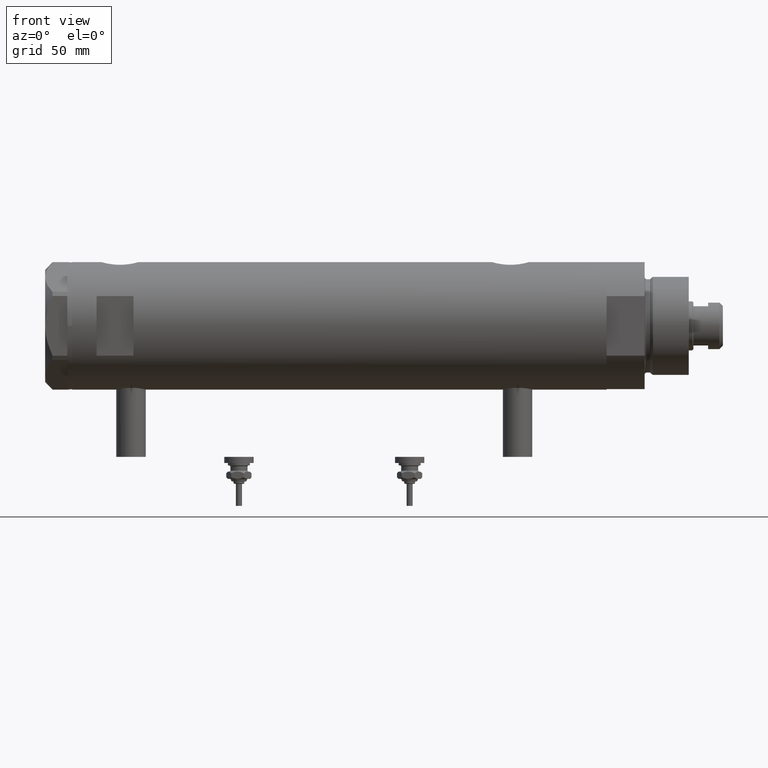
[diagram: clean part render]
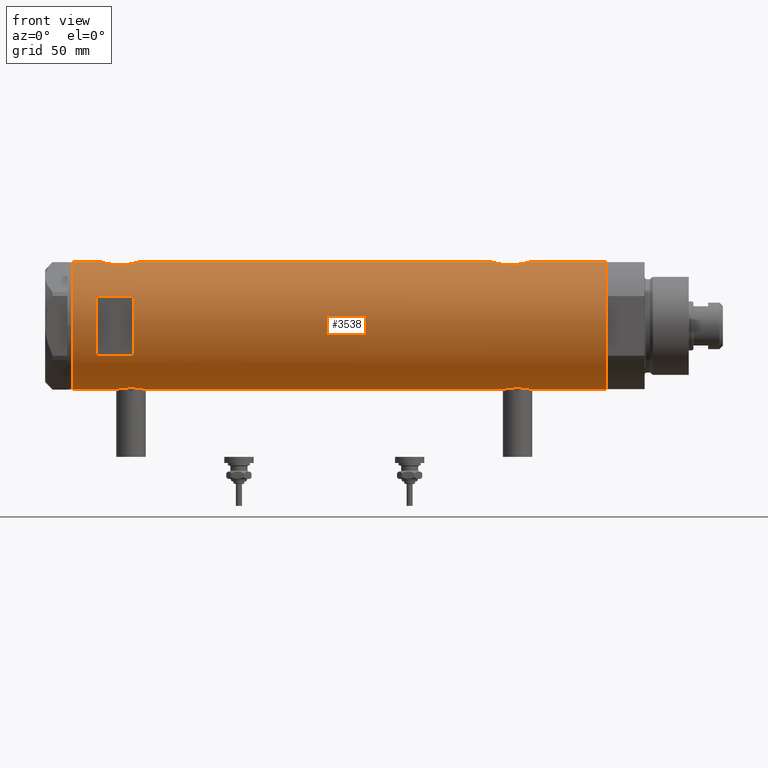
[diagram: same view with one face highlighted and labeled with its STEP entity id]
A machine part, front view. The second image highlights one B-rep face of the part: STEP entity #3538.
In plain terms, the highlighted cylindrical surface (partial cylindrical patch) has radius 26 mm, axis along (-1, -0, 0).
Its self-contained STEP definition (entity closure, byte-faithful):
#2 = CARTESIAN_POINT ( 'NONE',  ( -25.57167894663063024, -4.701762988462085069, 89.07280450192419607 ) ) ;
#37 = CARTESIAN_POINT ( 'NONE',  ( -25.25025691038242215, -6.198787452305312584, 84.12558834604206481 ) ) ;
#52 = CARTESIAN_POINT ( 'NONE',  ( 24.89854802586675220, -7.487520416261751244, -69.25184316422095776 ) ) ;
#55 = CARTESIAN_POINT ( 'NONE',  ( -25.78943824387523520, -3.306687742228915372, -77.95754138783466658 ) ) ;
#69 = CARTESIAN_POINT ( 'NONE',  ( -25.42977453177915592, -5.420307583276858132, 81.81187728206637644 ) ) ;
#84 = CARTESIAN_POINT ( 'NONE',  ( 25.59500516383204882, -4.575229401795805728, -75.69787755065419788 ) ) ;
#87 = CARTESIAN_POINT ( 'NONE',  ( -25.24022290516699130, -6.239518219915429320, -73.06597215938428747 ) ) ;
#127 = CARTESIAN_POINT ( 'NONE',  ( 24.89475831528844907, -7.500067228253142204, 88.95662571746466085 ) ) ;
#152 = CARTESIAN_POINT ( 'NONE',  ( 26.00000000000000355, 3.155021778966484351E-16, -77.25000000000001421 ) ) ;
#155 = CARTESIAN_POINT ( 'NONE',  ( -25.28680988956730147, -6.048472998962280300, -74.27627694188244334 ) ) ;
#190 = CARTESIAN_POINT ( 'NONE',  ( 25.52567976009756023, -4.956266804246118873, 95.10019927459099165 ) ) ;
#385 = VECTOR ( 'NONE', #3114, 1000.000000000000000 ) ;
#395 = ORIENTED_EDGE ( 'NONE', *, *, #2125, .F. ) ;
#408 = CARTESIAN_POINT ( 'NONE',  ( 26.00000000000000355, 1.142179864233347086E-15, 81.94999999999998863 ) ) ;
#473 = CARTESIAN_POINT ( 'NONE',  ( 24.90947356773249055, -7.451722770779349858, -70.73190841828153452 ) ) ;
#487 = CARTESIAN_POINT ( 'NONE',  ( -25.92425332714051933, -2.018894156999441858, 79.02103879324673130 ) ) ;
#505 = VERTEX_POINT ( 'NONE', #3537 ) ;
#516 = CARTESIAN_POINT ( 'NONE',  ( -25.49846181844014481, -5.083495422175113632, 88.59177503382598218 ) ) ;
#522 = LINE ( 'NONE', #4928, #3123 ) ;
#537 = CARTESIAN_POINT ( 'NONE',  ( -25.42977453177915592, -5.420307583276858132, -75.78812271793360367 ) ) ;
#540 = CARTESIAN_POINT ( 'NONE',  ( -26.00000000000000355, 3.184081677783118585E-15, -108.9500000000000028 ) ) ;
#628 = CARTESIAN_POINT ( 'NONE',  ( -25.67063510297210271, -4.128418051804843003, -67.95317424728736455 ) ) ;
#636 = CARTESIAN_POINT ( 'NONE',  ( 25.03461301890608581, -7.019803056070516689, 86.79816816893104203 ) ) ;
#668 = CARTESIAN_POINT ( 'NONE',  ( 25.17393786935995692, -6.507882790539431639, 85.68962666655968974 ) ) ;
#699 = CARTESIAN_POINT ( 'NONE',  ( 25.38109653984943392, -5.641393955635675361, 94.39819092448752258 ) ) ;
#713 = DIRECTION ( 'NONE',  ( 0.000000000000000000, 0.000000000000000000, 1.000000000000000000 ) ) ;
#758 = VERTEX_POINT ( 'NONE', #1038 ) ;
#796 = CARTESIAN_POINT ( 'NONE',  ( 0.000000000000000000, 0.000000000000000000, 98.95000000000001705 ) ) ;
#884 = CARTESIAN_POINT ( 'NONE',  ( 26.00000000000000000, -0.4982617809740604309, 81.94999999999998863 ) ) ;
#903 = CARTESIAN_POINT ( 'NONE',  ( -25.59645788645699227, -4.565358797148518555, 89.22330529203479443 ) ) ;
#936 = CARTESIAN_POINT ( 'NONE',  ( -25.92364458890660472, -2.026637113504541343, 90.87630990691475574 ) ) ;
#958 = CARTESIAN_POINT ( 'NONE',  ( 25.88994451797512397, -2.432613607265610156, -76.86140968713208110 ) ) ;
#986 = CARTESIAN_POINT ( 'NONE',  ( 25.89059789403177092, -2.425642437452270705, -62.63622552757698259 ) ) ;
#1005 = DIRECTION ( 'NONE',  ( 0.000000000000000000, 0.000000000000000000, 1.000000000000000000 ) ) ;
#1029 = CARTESIAN_POINT ( 'NONE',  ( -25.72076778631230098, -3.815670258243490043, 79.98312189468119016 ) ) ;
#1038 = CARTESIAN_POINT ( 'NONE',  ( 26.00000000000000355, -3.975028449552882818E-20, -62.24999999999999289 ) ) ;
#1046 = CARTESIAN_POINT ( 'NONE',  ( 25.38109653984943748, -5.641393955635675361, -64.80180907551250868 ) ) ;
#1055 = VERTEX_POINT ( 'NONE', #5252 ) ;
#1081 = CARTESIAN_POINT ( 'NONE',  ( -25.42883439573799720, -5.424786127492319920, -69.51918542739090867 ) ) ;
#1089 = EDGE_CURVE ( 'NONE', #2269, #5100, #2810, .T. ) ;
#1115 = CARTESIAN_POINT ( 'NONE',  ( -25.57167894663063024, -4.701762988462084181, -68.52719549807581245 ) ) ;
#1119 = CARTESIAN_POINT ( 'NONE',  ( 24.92415241886515531, -7.401968919186696638, 90.68323537444815940 ) ) ;
#1154 = CARTESIAN_POINT ( 'NONE',  ( 25.11243836838846377, -6.738202653785839935, 86.12043350844844269 ) ) ;
#1160 = CARTESIAN_POINT ( 'NONE',  ( -25.99999999999999289, -0.4144764235405741237, 91.19999999999997442 ) ) ;
#1162 = VERTEX_POINT ( 'NONE', #540 ) ;
#1182 = LINE ( 'NONE', #5520, #3689 ) ;
#1184 = CARTESIAN_POINT ( 'NONE',  ( 25.98599366666249466, -0.9828433289544136198, 96.90188401723477796 ) ) ;
#1195 = CARTESIAN_POINT ( 'NONE',  ( 26.00000000000000355, 3.155021778966484351E-16, -77.25000000000001421 ) ) ;
#1237 = ORIENTED_EDGE ( 'NONE', *, *, #2875, .F. ) ;
#1260 = FACE_OUTER_BOUND ( 'NONE', #2727, .T. ) ;
#1279 = EDGE_CURVE ( 'NONE', #1162, #1371, #1182, .T. ) ;
#1289 = CYLINDRICAL_SURFACE ( 'NONE', #1495, 26.00000000000000355 ) ;
#1303 = CARTESIAN_POINT ( 'NONE',  ( 25.72912156655464955, -3.765948295762494791, 82.94557024600776174 ) ) ;
#1312 = CARTESIAN_POINT ( 'NONE',  ( 12.12435565298214080, -23.00000000000000355, 83.95000000000001705 ) ) ;
#1341 = CARTESIAN_POINT ( 'NONE',  ( -12.12435565298214080, -23.00000000000000355, 83.95000000000001705 ) ) ;
#1371 = VERTEX_POINT ( 'NONE', #5077 ) ;
#1383 = CARTESIAN_POINT ( 'NONE',  ( -25.78943824387523520, -3.306687742228914484, 79.64245861216535616 ) ) ;
#1397 = DIRECTION ( 'NONE',  ( -0.000000000000000000, -0.000000000000000000, -1.000000000000000000 ) ) ;
#1400 = CARTESIAN_POINT ( 'NONE',  ( 25.93098857934040780, -1.953835360821273515, 82.19226335297440755 ) ) ;
#1413 = CARTESIAN_POINT ( 'NONE',  ( -25.81160981652327635, -3.129523010631801494, 79.53607026277927616 ) ) ;
#1426 = CARTESIAN_POINT ( 'NONE',  ( 26.00000000000000000, -0.4910237949823181847, -62.24999999999997868 ) ) ;
#1475 = CARTESIAN_POINT ( 'NONE',  ( -26.00000000000001066, -0.4086738135806035066, 78.70000000000000284 ) ) ;
#1481 = CARTESIAN_POINT ( 'NONE',  ( -26.00000000000000355, 3.184081677783118585E-15, -108.9500000000000028 ) ) ;
#1489 = CARTESIAN_POINT ( 'NONE',  ( 25.72873412774686130, -3.768477344985557753, -63.24712539855536875 ) ) ;
#1495 = AXIS2_PLACEMENT_3D ( 'NONE', #6213, #713, #1819 ) ;
#1522 = CARTESIAN_POINT ( 'NONE',  ( -26.00000000000000355, 3.184077527313362130E-15, 78.69999999999998863 ) ) ;
#1540 = ORIENTED_EDGE ( 'NONE', *, *, #2091, .F. ) ;
#1545 = AXIS2_PLACEMENT_3D ( 'NONE', #5203, #1713, #4629 ) ;
#1552 = CARTESIAN_POINT ( 'NONE',  ( 25.98569226047905900, -0.9886551788957241849, -77.20082376600181817 ) ) ;
#1555 = CARTESIAN_POINT ( 'NONE',  ( -25.23758491649665459, -6.250144606721702800, -72.23988300428190712 ) ) ;
#1584 = CARTESIAN_POINT ( 'NONE',  ( -25.72076778631230098, -3.815670258243491819, -77.61687810531877574 ) ) ;
#1588 = CARTESIAN_POINT ( 'NONE',  ( 24.96970063328116751, -7.247045583599700080, 87.50280785145197626 ) ) ;
#1617 = CARTESIAN_POINT ( 'NONE',  ( 25.59665538672497576, -4.580438224580683837, 95.40889127712392792 ) ) ;
#1664 = EDGE_CURVE ( 'NONE', #4670, #2429, #4808, .T. ) ;
#1680 = DIRECTION ( 'NONE',  ( 0.000000000000000000, 0.000000000000000000, 1.000000000000000000 ) ) ;
#1713 = DIRECTION ( 'NONE',  ( 0.000000000000000000, 0.000000000000000000, 1.000000000000000000 ) ) ;
#1767 = CARTESIAN_POINT ( 'NONE',  ( -25.85385060263651269, -2.778671585188182025, -67.03685548695763430 ) ) ;
#1772 = CARTESIAN_POINT ( 'NONE',  ( 25.52449676677458967, -4.953491517965892932, 83.81325508665925383 ) ) ;
#1792 = ORIENTED_EDGE ( 'NONE', *, *, #2479, .T. ) ;
#1797 = AXIS2_PLACEMENT_3D ( 'NONE', #796, #5683, #2376 ) ;
#1809 = DIRECTION ( 'NONE',  ( 1.000000000000000000, 0.000000000000000000, 0.000000000000000000 ) ) ;
#1819 = DIRECTION ( 'NONE',  ( 1.000000000000000000, 0.000000000000000000, 0.000000000000000000 ) ) ;
#1862 = ORIENTED_EDGE ( 'NONE', *, *, #1089, .T. ) ;
#1875 = VERTEX_POINT ( 'NONE', #5482 ) ;
#1882 = CARTESIAN_POINT ( 'NONE',  ( -25.95206678899177888, -1.628763264760248353, 90.99800813330213600 ) ) ;
#1886 = DIRECTION ( 'NONE',  ( 0.000000000000000000, 0.000000000000000000, 1.000000000000000000 ) ) ;
#1911 = CARTESIAN_POINT ( 'NONE',  ( -25.85288666140180069, -2.767917424206677524, 79.34257790010329359 ) ) ;
#1926 = CARTESIAN_POINT ( 'NONE',  ( 24.92415241886515176, -7.401968919186693086, -68.51676462555187186 ) ) ;
#1944 = CARTESIAN_POINT ( 'NONE',  ( -26.00000000000000355, 1.227111019500118713E-15, -66.40000000000000568 ) ) ;
#1959 = CARTESIAN_POINT ( 'NONE',  ( 25.93085545515513246, -1.956676574435514349, -62.49272963169730133 ) ) ;
#1975 = CARTESIAN_POINT ( 'NONE',  ( -25.64593536028936427, -4.278686337618962554, 89.51031602960877365 ) ) ;
#1986 = CARTESIAN_POINT ( 'NONE',  ( -12.12435565298214080, -23.00000000000000355, -108.9500000000000028 ) ) ;
#1988 = CARTESIAN_POINT ( 'NONE',  ( 24.89478872726945013, -7.499966281647711064, -69.50178149365218871 ) ) ;
#1992 = CARTESIAN_POINT ( 'NONE',  ( -25.25769689814629970, -6.168504065326070318, -73.67646635296743796 ) ) ;
#2023 = CARTESIAN_POINT ( 'NONE',  ( 25.62983961939740141, -4.376509667782460866, -75.84558499042961444 ) ) ;
#2066 = CARTESIAN_POINT ( 'NONE',  ( 24.90947356773249055, -7.451722770779351634, 88.46809158171845411 ) ) ;
#2091 = EDGE_CURVE ( 'NONE', #3632, #4168, #2843, .T. ) ;
#2125 = EDGE_CURVE ( 'NONE', #505, #1875, #2395, .T. ) ;
#2189 = CARTESIAN_POINT ( 'NONE',  ( -25.99009752186833566, -0.8230863847107360298, -66.44082928593320503 ) ) ;
#2212 = LINE ( 'NONE', #4169, #4034 ) ;
#2244 = CARTESIAN_POINT ( 'NONE',  ( -25.95206678899177533, -1.628763264760248353, -66.60199186669787252 ) ) ;
#2269 = VERTEX_POINT ( 'NONE', #5051 ) ;
#2288 = CARTESIAN_POINT ( 'NONE',  ( 0.000000000000000000, 0.000000000000000000, -108.9500000000000028 ) ) ;
#2339 = CARTESIAN_POINT ( 'NONE',  ( 25.88994451797511687, -2.432613607265607936, 82.33859031286796437 ) ) ;
#2346 = ORIENTED_EDGE ( 'NONE', *, *, #3978, .F. ) ;
#2357 = CARTESIAN_POINT ( 'NONE',  ( -25.42883439573799720, -5.424786127492320809, 88.08081457260908564 ) ) ;
#2376 = DIRECTION ( 'NONE',  ( 1.000000000000000000, 0.000000000000000000, 0.000000000000000000 ) ) ;
#2388 = CARTESIAN_POINT ( 'NONE',  ( -25.28680988956730147, -6.048472998962280300, 83.32372305811755098 ) ) ;
#2395 = LINE ( 'NONE', #1481, #5842 ) ;
#2421 = CARTESIAN_POINT ( 'NONE',  ( -25.23758491649666524, -6.250144606721703688, 85.36011699571807299 ) ) ;
#2429 = VERTEX_POINT ( 'NONE', #1341 ) ;
#2461 = VECTOR ( 'NONE', #1397, 1000.000000000000000 ) ;
#2479 = EDGE_CURVE ( 'NONE', #1162, #2269, #3297, .T. ) ;
#2486 = ORIENTED_EDGE ( 'NONE', *, *, #2707, .F. ) ;
#2501 = CARTESIAN_POINT ( 'NONE',  ( -26.00000000000000355, 3.184077527325983904E-15, -78.90000000000000568 ) ) ;
#2538 = CARTESIAN_POINT ( 'NONE',  ( 25.41756773306325456, -5.475260495868988109, 94.58140873656952863 ) ) ;
#2569 = CARTESIAN_POINT ( 'NONE',  ( -25.28632996747171546, -6.050474653715410156, -71.03088129158460617 ) ) ;
#2598 = CARTESIAN_POINT ( 'NONE',  ( 26.00000000000001066, -0.4982617809740571002, -77.25000000000004263 ) ) ;
#2606 = CARTESIAN_POINT ( 'NONE',  ( 25.30930190055639528, -5.959775463244130655, 84.87025956521969761 ) ) ;
#2635 = CARTESIAN_POINT ( 'NONE',  ( 25.31004928890825667, -5.952041021437470825, 94.01980599883506784 ) ) ;
#2661 = CIRCLE ( 'NONE', #1545, 26.00000000000000355 ) ;
#2704 = CARTESIAN_POINT ( 'NONE',  ( 12.12435565298214080, -23.00000000000000355, 98.95000000000001705 ) ) ;
#2707 = EDGE_CURVE ( 'NONE', #3206, #1055, #4043, .T. ) ;
#2727 = EDGE_LOOP ( 'NONE', ( #3043, #1792, #1862, #1237, #3958, #2486, #3308, #4737, #395, #2838, #1540, #5799 ) ) ;
#2735 = CARTESIAN_POINT ( 'NONE',  ( 26.00000000000000355, 0.000000000000000000, 108.9500000000000028 ) ) ;
#2741 = FACE_BOUND ( 'NONE', #5514, .T. ) ;
#2752 = CARTESIAN_POINT ( 'NONE',  ( -26.00000000000000355, 1.227111019500118713E-15, -66.40000000000000568 ) ) ;
#2810 = LINE ( 'NONE', #6279, #4306 ) ;
#2827 = B_SPLINE_CURVE_WITH_KNOTS ( 'NONE', 3,
 ( #2501, #5518, #4558, #3084, #2982, #4939, #5966, #5458, #55, #1584, #4490, #3915, #3435, #537, #5393, #5932, #155, #1992, #3949, #87, #3531, #1555, #5488, #2569, #3502, #4042, #1081, #3014, #4974, #1115, #3047, #5007, #628, #4527, #5996, #5605, #1767, #5641, #2244, #2189, #5072, #2752 ),
 .UNSPECIFIED., .F., .F.,
 ( 4, 2, 2, 2, 2, 2, 2, 2, 2, 2, 2, 2, 2, 2, 2, 2, 2, 2, 2, 2, 4 ),
 ( 0.01961238453869445023, 0.02083783025472766420, 0.02206327597076088165, 0.02267599882877747997, 0.02328872168679408175, 0.02451416740282726103, 0.02573961311886044032, 0.02696505883489361960, 0.02819050455092679541, 0.02880322740894340761, 0.02941595026696001633, 0.03064139598299327888, 0.03186684169902653796, 0.03309228741505979704, 0.03370501027307643005, 0.03431773313109305612, 0.03493045598910968219, 0.03554317884712631520, 0.03676862456315957428, 0.03799407027919284030, 0.03921951599522609938 ),
 .UNSPECIFIED. ) ;
#2835 = ORIENTED_EDGE ( 'NONE', *, *, #4559, .F. ) ;
#2836 = CARTESIAN_POINT ( 'NONE',  ( -25.87202607293667000, -2.583404329177993120, 79.25526333145485580 ) ) ;
#2838 = ORIENTED_EDGE ( 'NONE', *, *, #5350, .F. ) ;
#2843 = LINE ( 'NONE', #5378, #4409 ) ;
#2850 = CARTESIAN_POINT ( 'NONE',  ( 25.03461301890608937, -7.019803056070514913, -72.40183183106897502 ) ) ;
#2868 = CARTESIAN_POINT ( 'NONE',  ( -25.52274351135604746, -4.960534548086194206, 88.75751745340733123 ) ) ;
#2875 = EDGE_CURVE ( 'NONE', #758, #5100, #4724, .T. ) ;
#2884 = CARTESIAN_POINT ( 'NONE',  ( 25.93098857934041490, -1.953835360821270628, -77.00773664702565213 ) ) ;
#2898 = CARTESIAN_POINT ( 'NONE',  ( -25.99036913299955742, -0.8159609457881448202, 78.73968856968109264 ) ) ;
#2964 = CARTESIAN_POINT ( 'NONE',  ( -25.57228991600092272, -4.705691472451695390, 80.81660309875346115 ) ) ;
#2979 = CARTESIAN_POINT ( 'NONE',  ( 24.91324908721445297, -7.438459228814674695, -68.75982500625811156 ) ) ;
#2982 = CARTESIAN_POINT ( 'NONE',  ( -25.92425332714051933, -2.018894156999447631, -78.57896120675330565 ) ) ;
#3014 = CARTESIAN_POINT ( 'NONE',  ( -25.49846181844014836, -5.083495422175115408, -69.00822496617402635 ) ) ;
#3043 = ORIENTED_EDGE ( 'NONE', *, *, #1279, .F. ) ;
#3047 = CARTESIAN_POINT ( 'NONE',  ( -25.59645788645699582, -4.565358797148518555, -68.37669470796522830 ) ) ;
#3084 = CARTESIAN_POINT ( 'NONE',  ( -25.95218276861526974, -1.627663810194430960, -78.69850980387604977 ) ) ;
#3114 = DIRECTION ( 'NONE',  ( 0.000000000000000000, 0.000000000000000000, 1.000000000000000000 ) ) ;
#3118 = CARTESIAN_POINT ( 'NONE',  ( 25.89059789403177092, -2.425642437452268041, 96.56377447242302026 ) ) ;
#3123 = VECTOR ( 'NONE', #5411, 1000.000000000000000 ) ;
#3135 = EDGE_CURVE ( 'NONE', #5658, #3947, #2212, .T. ) ;
#3148 = CARTESIAN_POINT ( 'NONE',  ( 24.91324908721445652, -7.438459228814672919, 90.44017499374189129 ) ) ;
#3180 = CARTESIAN_POINT ( 'NONE',  ( 24.89478872726945369, -7.499966281647711064, 89.69821850634781413 ) ) ;
#3206 = VERTEX_POINT ( 'NONE', #5824 ) ;
#3240 = CARTESIAN_POINT ( 'NONE',  ( 25.48871066912672845, -5.133852125086512785, 83.97709693256024366 ) ) ;
#3264 = EDGE_CURVE ( 'NONE', #3206, #4001, #522, .T. ) ;
#3270 = ORIENTED_EDGE ( 'NONE', *, *, #3135, .F. ) ;
#3297 = CIRCLE ( 'NONE', #4126, 26.00000000000000355 ) ;
#3308 = ORIENTED_EDGE ( 'NONE', *, *, #3264, .T. ) ;
#3317 = CARTESIAN_POINT ( 'NONE',  ( -25.38744165544136777, -5.612847683295913548, 82.17012416761524207 ) ) ;
#3332 = CARTESIAN_POINT ( 'NONE',  ( 25.52567976009756734, -4.956266804246113544, -64.09980072540906804 ) ) ;
#3337 = CIRCLE ( 'NONE', #6310, 26.00000000000000355 ) ;
#3365 = CARTESIAN_POINT ( 'NONE',  ( 25.01107424167500071, -7.102941973849621782, -72.17062848662580166 ) ) ;
#3413 = CARTESIAN_POINT ( 'NONE',  ( -25.31538696791482224, -5.929326713517952818, 86.96796632208101130 ) ) ;
#3435 = CARTESIAN_POINT ( 'NONE',  ( -25.52190669608695472, -4.968444991210427375, -76.46341092192484723 ) ) ;
#3465 = CARTESIAN_POINT ( 'NONE',  ( 25.78993643992928497, -3.329561377902416464, -63.01178439721262237 ) ) ;
#3502 = CARTESIAN_POINT ( 'NONE',  ( -25.31538696791482224, -5.929326713517954595, -70.63203367791901144 ) ) ;
#3521 = DIRECTION ( 'NONE',  ( -0.000000000000000000, -4.625929269271486900E-15, 1.000000000000000000 ) ) ;
#3531 = CARTESIAN_POINT ( 'NONE',  ( -25.23763877699556701, -6.249927116972441965, -72.85835527665466316 ) ) ;
#3537 = CARTESIAN_POINT ( 'NONE',  ( -26.00000000000000355, 1.227111019500118713E-15, 91.20000000000000284 ) ) ;
#3538 = ADVANCED_FACE ( 'NONE', ( #1260, #2741 ), #1289, .T. ) ;
#3569 = CARTESIAN_POINT ( 'NONE',  ( 24.96672817551787915, -7.257586026187405004, 91.40384199721297875 ) ) ;
#3632 = VERTEX_POINT ( 'NONE', #1944 ) ;
#3634 = CARTESIAN_POINT ( 'NONE',  ( 25.00829008792690900, -7.115081037226478777, 91.87301003740817862 ) ) ;
#3656 = CARTESIAN_POINT ( 'NONE',  ( 26.00000000000000355, 0.000000000000000000, -108.9500000000000028 ) ) ;
#3689 = VECTOR ( 'NONE', #1680, 1000.000000000000000 ) ;
#3721 = CARTESIAN_POINT ( 'NONE',  ( 25.62983961939739785, -4.376509667782460866, 83.35441500957037420 ) ) ;
#3847 = CARTESIAN_POINT ( 'NONE',  ( 25.31004928890825312, -5.952041021437469048, -65.18019400116494921 ) ) ;
#3875 = CARTESIAN_POINT ( 'NONE',  ( 24.89475831528844552, -7.500067228253141316, -70.24337428253535620 ) ) ;
#3897 = CARTESIAN_POINT ( 'NONE',  ( -25.99009752186832856, -0.8230863847107351416, 91.15917071406683192 ) ) ;
#3912 = CARTESIAN_POINT ( 'NONE',  ( 25.41756773306325812, -5.475260495868981003, -64.61859126343054527 ) ) ;
#3915 = CARTESIAN_POINT ( 'NONE',  ( -25.57228991600091916, -4.705691472451703383, -76.78339690124650474 ) ) ;
#3946 = CARTESIAN_POINT ( 'NONE',  ( 24.96970063328117462, -7.247045583599700080, -71.69719214854804079 ) ) ;
#3947 = VERTEX_POINT ( 'NONE', #2704 ) ;
#3949 = CARTESIAN_POINT ( 'NONE',  ( -25.25025691038241860, -6.198787452305312584, -73.47441165395792950 ) ) ;
#3958 = ORIENTED_EDGE ( 'NONE', *, *, #4208, .T. ) ;
#3978 = EDGE_CURVE ( 'NONE', #3947, #4670, #5176, .T. ) ;
#4001 = VERTEX_POINT ( 'NONE', #2735 ) ;
#4002 = CARTESIAN_POINT ( 'NONE',  ( 0.000000000000000000, 0.000000000000000000, 83.95000000000011653 ) ) ;
#4017 = CARTESIAN_POINT ( 'NONE',  ( 24.95200646071793926, -7.307522494171290184, 87.74392435812720237 ) ) ;
#4034 = VECTOR ( 'NONE', #4419, 1000.000000000000000 ) ;
#4042 = CARTESIAN_POINT ( 'NONE',  ( -25.38662204309617465, -5.616507264474307703, -69.87800622280676066 ) ) ;
#4043 = B_SPLINE_CURVE_WITH_KNOTS ( 'NONE', 3,
 ( #6032, #4596, #1184, #5582, #3118, #5971, #5046, #1617, #190, #2538, #699, #2635, #6099, #5610, #4493, #3634, #3569, #1119, #3148, #5522, #3180, #127, #2066, #4017, #1588, #5010, #636, #1154, #668, #2606, #5673, #3240, #1772, #6165, #3721, #1303, #5707, #2339, #1400, #4300, #884, #408 ),
 .UNSPECIFIED., .F., .F.,
 ( 4, 2, 2, 2, 2, 2, 2, 2, 2, 2, 2, 2, 2, 2, 2, 2, 2, 2, 2, 2, 4 ),
 ( 0.02357432247332889169, 0.02504731828495727897, 0.02652031409658566277, 0.02799330990821405005, 0.02946630571984243385, 0.03020280362565662749, 0.03093930153147082113, 0.03241229734309917371, 0.03388529315472752629, 0.03462179106054170258, 0.03535828896635587887, 0.03683128477798423145, 0.03756778268379840774, 0.03830428058961257709, 0.03977727640124092967, 0.04125027221286928225, 0.04198677011868344466, 0.04272326802449760708, 0.04419626383612591108, 0.04566925964775421509, 0.04714225545938251910 ),
 .UNSPECIFIED. ) ;
#4067 = DIRECTION ( 'NONE',  ( 1.776356839400250465E-15, 1.000000000000000000, 4.803849625781927035E-15 ) ) ;
#4126 = AXIS2_PLACEMENT_3D ( 'NONE', #2288, #6203, #1809 ) ;
#4163 = CARTESIAN_POINT ( 'NONE',  ( -12.12435565298214080, -23.00000000000000355, 98.95000000000001705 ) ) ;
#4168 = VERTEX_POINT ( 'NONE', #1522 ) ;
#4169 = CARTESIAN_POINT ( 'NONE',  ( 12.12435565298214080, -23.00000000000000355, -108.9500000000000028 ) ) ;
#4208 = EDGE_CURVE ( 'NONE', #758, #1055, #4526, .T. ) ;
#4300 = CARTESIAN_POINT ( 'NONE',  ( 25.98569226047904834, -0.9886551788957221865, 81.99917623399818467 ) ) ;
#4306 = VECTOR ( 'NONE', #1886, 1000.000000000000000 ) ;
#4314 = CARTESIAN_POINT ( 'NONE',  ( -25.74330903162726258, -3.648508829439215617, 90.02867714715799252 ) ) ;
#4330 = CARTESIAN_POINT ( 'NONE',  ( 25.48871066912673911, -5.133852125086513674, -75.22290306743980182 ) ) ;
#4343 = CARTESIAN_POINT ( 'NONE',  ( -25.24022290516698774, -6.239518219915429320, 84.53402784061569264 ) ) ;
#4349 = DIRECTION ( 'NONE',  ( 0.000000000000000000, 0.000000000000000000, 1.000000000000000000 ) ) ;
#4352 = ORIENTED_EDGE ( 'NONE', *, *, #1664, .F. ) ;
#4360 = CARTESIAN_POINT ( 'NONE',  ( 26.00000000000000355, -3.975028449552882818E-20, -62.24999999999999289 ) ) ;
#4374 = CARTESIAN_POINT ( 'NONE',  ( -25.28632996747172967, -6.050474653715409268, 86.56911870841543077 ) ) ;
#4388 = CARTESIAN_POINT ( 'NONE',  ( 25.98599366666249111, -0.9828433289544102891, -62.29811598276526752 ) ) ;
#4409 = VECTOR ( 'NONE', #1005, 1000.000000000000000 ) ;
#4411 = CARTESIAN_POINT ( 'NONE',  ( -25.95218276861526263, -1.627663810194431404, 78.90149019612394454 ) ) ;
#4419 = DIRECTION ( 'NONE',  ( 0.000000000000000000, 0.000000000000000000, 1.000000000000000000 ) ) ;
#4425 = CARTESIAN_POINT ( 'NONE',  ( 25.59665538672497220, -4.580438224580683837, -63.79110872287611755 ) ) ;
#4441 = CARTESIAN_POINT ( 'NONE',  ( -25.67167563980648026, -4.129238867693847403, 80.24065943568896841 ) ) ;
#4456 = CARTESIAN_POINT ( 'NONE',  ( 25.11342038069226135, -6.734617143597214195, -66.41229304209502970 ) ) ;
#4490 = CARTESIAN_POINT ( 'NONE',  ( -25.67167563980648382, -4.129238867693852733, -77.35934056431106853 ) ) ;
#4493 = CARTESIAN_POINT ( 'NONE',  ( 25.11342038069227200, -6.734617143597215971, 92.78770695790494472 ) ) ;
#4526 = LINE ( 'NONE', #3656, #385 ) ;
#4527 = CARTESIAN_POINT ( 'NONE',  ( -25.71926338401909362, -3.813768894920908537, -67.69427860166180722 ) ) ;
#4538 = CARTESIAN_POINT ( 'NONE',  ( -26.00000000000000355, 1.227111019500118713E-15, 91.20000000000000284 ) ) ;
#4558 = CARTESIAN_POINT ( 'NONE',  ( -25.99036913299956453, -0.8159609457881454864, -78.86031143031891588 ) ) ;
#4559 = EDGE_CURVE ( 'NONE', #2429, #5658, #3337, .T. ) ;
#4596 = CARTESIAN_POINT ( 'NONE',  ( 26.00000000000000355, -0.4910237949823202386, 96.95000000000000284 ) ) ;
#4629 = DIRECTION ( 'NONE',  ( 1.000000000000000000, 0.000000000000000000, 0.000000000000000000 ) ) ;
#4670 = VERTEX_POINT ( 'NONE', #4163 ) ;
#4724 = B_SPLINE_CURVE_WITH_KNOTS ( 'NONE', 3,
 ( #4360, #1426, #4388, #1959, #986, #3465, #1489, #4425, #3332, #3912, #1046, #3847, #4843, #5834, #4456, #5389, #5927, #1926, #2979, #52, #1988, #3875, #473, #5295, #3946, #3365, #2850, #5328, #5900, #4810, #6323, #4330, #4936, #84, #2023, #6289, #5800, #958, #2884, #1552, #2598, #152 ),
 .UNSPECIFIED., .F., .F.,
 ( 4, 2, 2, 2, 2, 2, 2, 2, 2, 2, 2, 2, 2, 2, 2, 2, 2, 2, 2, 2, 4 ),
 ( 0.02357432247332888822, 0.02504731828495722692, 0.02652031409658556910, 0.02799330990821390780, 0.02946630571984224650, 0.03020280362565641585, 0.03093930153147058520, 0.03241229734309895860, 0.03388529315472733200, 0.03462179106054152217, 0.03535828896635570540, 0.03683128477798407879, 0.03756778268379826896, 0.03830428058961245219, 0.03977727640124082559, 0.04125027221286919898, 0.04198677011868337527, 0.04272326802449755156, 0.04419626383612587639, 0.04566925964775419428, 0.04714225545938251910 ),
 .UNSPECIFIED. ) ;
#4737 = ORIENTED_EDGE ( 'NONE', *, *, #6005, .F. ) ;
#4795 = CARTESIAN_POINT ( 'NONE',  ( -25.67063510297210271, -4.128418051804843003, 89.64682575271265819 ) ) ;
#4808 = LINE ( 'NONE', #1986, #2461 ) ;
#4810 = CARTESIAN_POINT ( 'NONE',  ( 25.30930190055638818, -5.959775463244130655, -74.32974043478030524 ) ) ;
#4843 = CARTESIAN_POINT ( 'NONE',  ( 25.27534302296961854, -6.097250460344751488, -65.37590386902925843 ) ) ;
#4888 = CARTESIAN_POINT ( 'NONE',  ( -25.25769689814630325, -6.168504065326069430, 83.92353364703255636 ) ) ;
#4915 = B_SPLINE_CURVE_WITH_KNOTS ( 'NONE', 3,
 ( #5346, #1475, #2898, #4411, #487, #2836, #1911, #1413, #1383, #1029, #4441, #2964, #4923, #69, #3317, #5374, #2388, #4888, #37, #4343, #5880, #2421, #6306, #4374, #3413, #5280, #2357, #516, #2868, #2, #903, #1975, #4795, #5817, #4314, #6274, #5311, #936, #1882, #3897, #1160, #4538 ),
 .UNSPECIFIED., .F., .F.,
 ( 4, 2, 2, 2, 2, 2, 2, 2, 2, 2, 2, 2, 2, 2, 2, 2, 2, 2, 2, 2, 4 ),
 ( 0.01961238453869444676, 0.02083783025472769543, 0.02206327597076094410, 0.02267599882877755976, 0.02328872168679417543, 0.02451416740282743104, 0.02573961311886067971, 0.02696505883489393532, 0.02819050455092719093, 0.02880322740894379618, 0.02941595026696040144, 0.03064139598299361195, 0.03186684169902682245, 0.03309228741506003296, 0.03370501027307663822, 0.03431773313109324347, 0.03493045598910984872, 0.03554317884712646092, 0.03676862456315967143, 0.03799407027919288193, 0.03921951599522609938 ),
 .UNSPECIFIED. ) ;
#4923 = CARTESIAN_POINT ( 'NONE',  ( -25.52190669608696183, -4.968444991210429151, 81.13658907807514709 ) ) ;
#4928 = CARTESIAN_POINT ( 'NONE',  ( 26.00000000000000355, 0.000000000000000000, -108.9500000000000028 ) ) ;
#4936 = CARTESIAN_POINT ( 'NONE',  ( 25.52449676677458967, -4.953491517965894708, -75.38674491334074901 ) ) ;
#4939 = CARTESIAN_POINT ( 'NONE',  ( -25.87202607293667000, -2.583404329177999337, -78.34473666854512430 ) ) ;
#4974 = CARTESIAN_POINT ( 'NONE',  ( -25.52274351135605102, -4.960534548086195095, -68.84248254659266308 ) ) ;
#5007 = CARTESIAN_POINT ( 'NONE',  ( -25.64593536028936072, -4.278686337618961666, -68.08968397039120646 ) ) ;
#5010 = CARTESIAN_POINT ( 'NONE',  ( 25.01107424167501492, -7.102941973849622670, 87.02937151337422961 ) ) ;
#5046 = CARTESIAN_POINT ( 'NONE',  ( 25.72873412774686841, -3.768477344985559085, 95.95287460144463410 ) ) ;
#5051 = CARTESIAN_POINT ( 'NONE',  ( 26.00000000000000355, 0.000000000000000000, -108.9500000000000028 ) ) ;
#5072 = CARTESIAN_POINT ( 'NONE',  ( -26.00000000000001066, -0.4144764235405758446, -66.40000000000004832 ) ) ;
#5077 = CARTESIAN_POINT ( 'NONE',  ( -26.00000000000000355, 3.184077527325983904E-15, -78.90000000000000568 ) ) ;
#5100 = VERTEX_POINT ( 'NONE', #1195 ) ;
#5176 = CIRCLE ( 'NONE', #1797, 26.00000000000000355 ) ;
#5203 = CARTESIAN_POINT ( 'NONE',  ( 0.000000000000000000, 0.000000000000000000, 108.9500000000000028 ) ) ;
#5252 = CARTESIAN_POINT ( 'NONE',  ( 26.00000000000000355, 1.142179864233347086E-15, 81.94999999999998863 ) ) ;
#5280 = CARTESIAN_POINT ( 'NONE',  ( -25.38662204309616399, -5.616507264474307703, 87.72199377719323365 ) ) ;
#5295 = CARTESIAN_POINT ( 'NONE',  ( 24.95200646071794637, -7.307522494171291960, -71.45607564187282890 ) ) ;
#5311 = CARTESIAN_POINT ( 'NONE',  ( -25.85385060263650914, -2.778671585188189574, 90.56314451304237423 ) ) ;
#5328 = CARTESIAN_POINT ( 'NONE',  ( 25.11243836838845311, -6.738202653785838159, -73.07956649155158857 ) ) ;
#5346 = CARTESIAN_POINT ( 'NONE',  ( -26.00000000000000355, 3.184077527313362130E-15, 78.69999999999998863 ) ) ;
#5350 = EDGE_CURVE ( 'NONE', #4168, #505, #4915, .T. ) ;
#5374 = CARTESIAN_POINT ( 'NONE',  ( -25.31551596256916525, -5.928819821281963165, 82.92988508095918121 ) ) ;
#5378 = CARTESIAN_POINT ( 'NONE',  ( -26.00000000000000355, 3.184081677783118585E-15, -108.9500000000000028 ) ) ;
#5389 = CARTESIAN_POINT ( 'NONE',  ( 25.00829008792692321, -7.115081037226479665, -67.32698996259182422 ) ) ;
#5393 = CARTESIAN_POINT ( 'NONE',  ( -25.38744165544136422, -5.612847683295913548, -75.42987583238478067 ) ) ;
#5411 = DIRECTION ( 'NONE',  ( 0.000000000000000000, 0.000000000000000000, 1.000000000000000000 ) ) ;
#5458 = CARTESIAN_POINT ( 'NONE',  ( -25.81160981652326925, -3.129523010631804159, -78.06392973722074657 ) ) ;
#5482 = CARTESIAN_POINT ( 'NONE',  ( -26.00000000000000355, 3.184081677783118585E-15, 108.9500000000000028 ) ) ;
#5488 = CARTESIAN_POINT ( 'NONE',  ( -25.24765475072630139, -6.209883762780003202, -71.83321815644899289 ) ) ;
#5514 = EDGE_LOOP ( 'NONE', ( #2835, #4352, #2346, #3270 ) ) ;
#5518 = CARTESIAN_POINT ( 'NONE',  ( -25.99999999999999645, -0.4086738135806038397, -78.90000000000000568 ) ) ;
#5520 = CARTESIAN_POINT ( 'NONE',  ( -26.00000000000000355, 3.184081677783118585E-15, -108.9500000000000028 ) ) ;
#5522 = CARTESIAN_POINT ( 'NONE',  ( 24.89854802586674865, -7.487520416261751244, 89.94815683577905929 ) ) ;
#5582 = CARTESIAN_POINT ( 'NONE',  ( 25.93085545515512891, -1.956676574435516569, 96.70727036830268730 ) ) ;
#5605 = CARTESIAN_POINT ( 'NONE',  ( -25.81232680456766815, -3.137210741985112072, -67.22886342778420499 ) ) ;
#5610 = CARTESIAN_POINT ( 'NONE',  ( 25.17510548814052029, -6.503212750695476885, 93.21761787815349010 ) ) ;
#5641 = CARTESIAN_POINT ( 'NONE',  ( -25.92364458890659407, -2.026637113504532017, -66.72369009308523857 ) ) ;
#5658 = VERTEX_POINT ( 'NONE', #1312 ) ;
#5673 = CARTESIAN_POINT ( 'NONE',  ( 25.38125492692911678, -5.649348210287295835, 84.49305665653602659 ) ) ;
#5683 = DIRECTION ( 'NONE',  ( -0.000000000000000000, 0.000000000000000000, -1.000000000000000000 ) ) ;
#5707 = CARTESIAN_POINT ( 'NONE',  ( 25.78902964777116225, -3.336582972512959877, 82.71524159542262566 ) ) ;
#5799 = ORIENTED_EDGE ( 'NONE', *, *, #6292, .F. ) ;
#5800 = CARTESIAN_POINT ( 'NONE',  ( 25.78902964777117290, -3.336582972512958101, -76.48475840457741981 ) ) ;
#5817 = CARTESIAN_POINT ( 'NONE',  ( -25.71926338401910073, -3.813768894920909425, 89.90572139833814447 ) ) ;
#5824 = CARTESIAN_POINT ( 'NONE',  ( 26.00000000000000355, -3.975030973907779525E-20, 96.95000000000000284 ) ) ;
#5834 = CARTESIAN_POINT ( 'NONE',  ( 25.17510548814052029, -6.503212750695466227, -65.98238212184648432 ) ) ;
#5842 = VECTOR ( 'NONE', #4349, 1000.000000000000000 ) ;
#5880 = CARTESIAN_POINT ( 'NONE',  ( -25.23763877699557412, -6.249927116972443741, 84.74164472334534537 ) ) ;
#5900 = CARTESIAN_POINT ( 'NONE',  ( 25.17393786935996403, -6.507882790539431639, -73.51037333344034153 ) ) ;
#5927 = CARTESIAN_POINT ( 'NONE',  ( 24.96672817551788626, -7.257586026187406780, -67.79615800278703830 ) ) ;
#5932 = CARTESIAN_POINT ( 'NONE',  ( -25.31551596256916525, -5.928819821281961389, -74.67011491904084153 ) ) ;
#5966 = CARTESIAN_POINT ( 'NONE',  ( -25.85288666140181135, -2.767917424206679744, -78.25742209989670073 ) ) ;
#5971 = CARTESIAN_POINT ( 'NONE',  ( 25.78993643992928142, -3.329561377902412467, 96.18821560278738048 ) ) ;
#5996 = CARTESIAN_POINT ( 'NONE',  ( -25.74330903162725903, -3.648508829439208068, -67.57132285284200179 ) ) ;
#6005 = EDGE_CURVE ( 'NONE', #1875, #4001, #2661, .T. ) ;
#6032 = CARTESIAN_POINT ( 'NONE',  ( 26.00000000000000355, -3.975030973907779525E-20, 96.95000000000000284 ) ) ;
#6099 = CARTESIAN_POINT ( 'NONE',  ( 25.27534302296961499, -6.097250460344759482, 93.82409613097075862 ) ) ;
#6165 = CARTESIAN_POINT ( 'NONE',  ( 25.59500516383205593, -4.575229401795806616, 83.50212244934579076 ) ) ;
#6203 = DIRECTION ( 'NONE',  ( 0.000000000000000000, 0.000000000000000000, 1.000000000000000000 ) ) ;
#6213 = CARTESIAN_POINT ( 'NONE',  ( 0.000000000000000000, 0.000000000000000000, -108.9500000000000028 ) ) ;
#6274 = CARTESIAN_POINT ( 'NONE',  ( -25.81232680456766815, -3.137210741985116513, 90.37113657221574670 ) ) ;
#6279 = CARTESIAN_POINT ( 'NONE',  ( 26.00000000000000355, 0.000000000000000000, -108.9500000000000028 ) ) ;
#6289 = CARTESIAN_POINT ( 'NONE',  ( 25.72912156655466376, -3.765948295762498788, -76.25442975399225531 ) ) ;
#6292 = EDGE_CURVE ( 'NONE', #1371, #3632, #2827, .T. ) ;
#6306 = CARTESIAN_POINT ( 'NONE',  ( -25.24765475072630139, -6.209883762780004091, 85.76678184355100143 ) ) ;
#6310 = AXIS2_PLACEMENT_3D ( 'NONE', #4002, #3521, #4067 ) ;
#6323 = CARTESIAN_POINT ( 'NONE',  ( 25.38125492692910967, -5.649348210287295835, -74.70694334346399046 ) ) ;